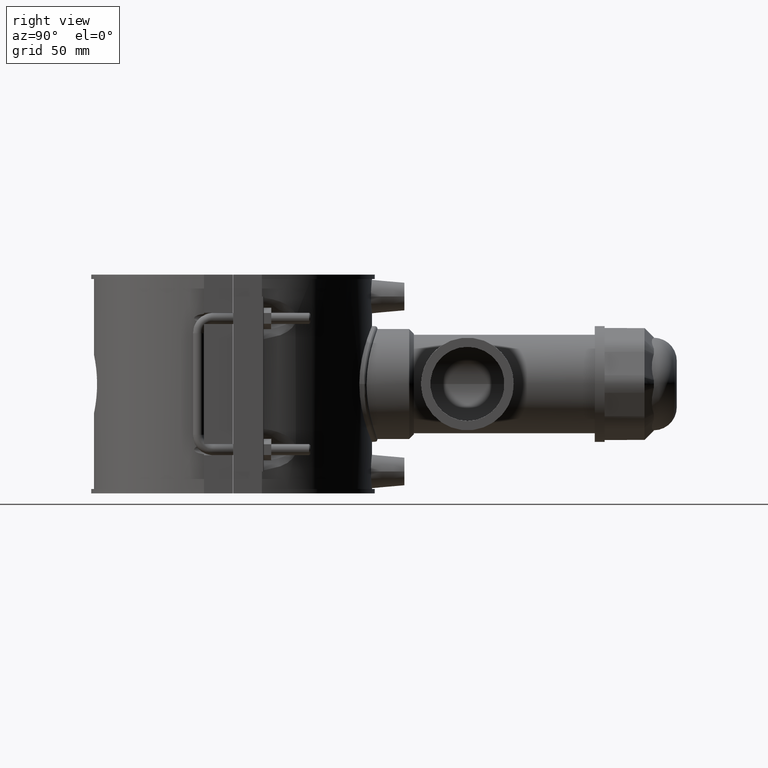
[diagram: clean part render]
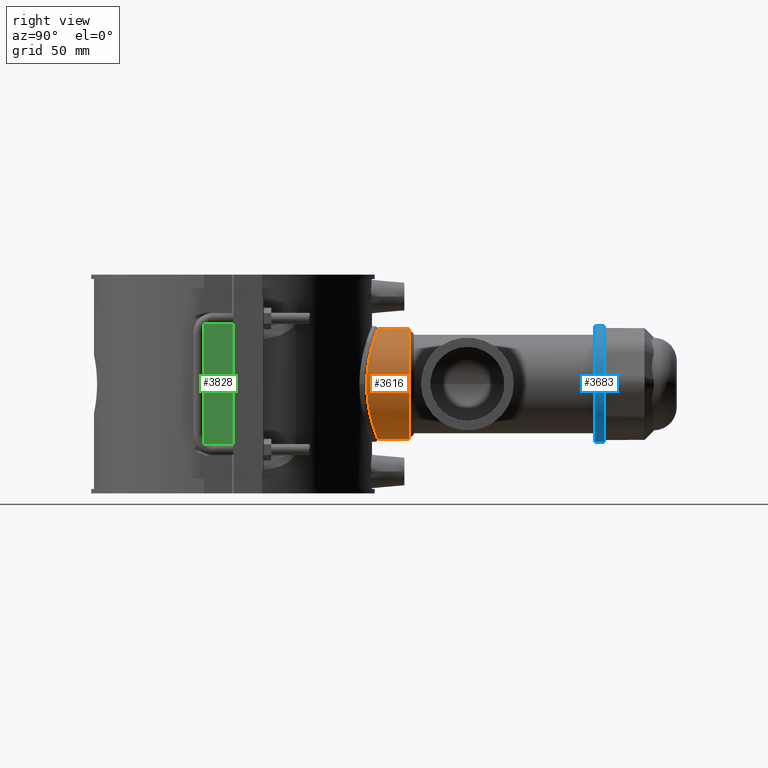
[diagram: same view with three faces highlighted in distinct colors, each labeled with its STEP entity id]
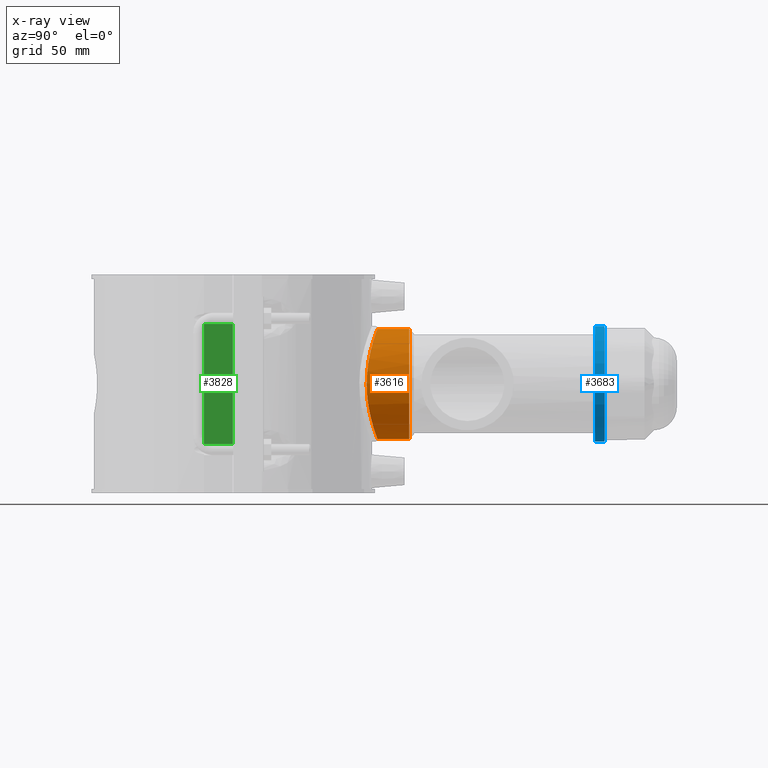
[diagram: x-ray of the same camera — body ghosted, the three highlighted faces saturated]
A machine part, right view with three faces highlighted in distinct colors.
The next image is the same camera in x-ray (body ghosted, the three faces saturated) — at least one of them is partly hidden behind the body in this view.
Their STEP definitions:

[orange] entity #3616 — the highlighted cylindrical surface (bore or boss wall) has radius 29.6875 mm, axis along (0, 1, 0).
#660=FACE_BOUND('',#1110,.T.);
#717=B_SPLINE_CURVE_WITH_KNOTS('',3,(#5286,#5287,#5288,#5289,#5290,#5291,
#5292,#5293,#5294,#5295,#5296,#5297,#5298,#5299,#5300,#5301,#5302,#5303,
#5304,#5305,#5306,#5307,#5308,#5309,#5310,#5311,#5312,#5313,#5314,#5315,
#5316,#5317,#5318,#5319,#5320,#5321,#5322,#5323,#5324,#5325,#5326,#5327,
#5328,#5329,#5330,#5331,#5332,#5333,#5334,#5335,#5336,#5337,#5338,#5339,
#5340,#5341,#5342,#5343,#5344,#5345,#5346,#5347,#5348,#5349,#5350,#5351),
 .UNSPECIFIED.,.T.,.F.,(4,2,2,2,2,2,2,2,2,2,2,2,2,2,2,2,2,2,2,2,2,2,2,2,
2,2,2,2,2,2,2,2,4),(0.,0.565609696294406,1.13121939258881,1.69682908888322,
2.26243878517762,2.82758682347981,3.392734861782,3.9578829000842,4.52303093838639,
5.08817897668858,5.65332701499077,6.21847505329296,6.78362309159515,7.34923278788955,
7.91484248418396,8.48045218047837,9.04606187677277,9.61167157306718,10.1772812693616,
10.742890965656,11.3085006619504,11.8736487002526,12.4387967385548,13.003944776857,
13.5690928151592,14.1342408534613,14.6993888917635,15.2645369300657,15.8296849683679,
16.3952946646623,16.9609043609567,17.5265140572511,18.0921237535455),
 .UNSPECIFIED.);
#823=CYLINDRICAL_SURFACE('',#3846,29.6875);
#880=FACE_OUTER_BOUND('',#1109,.T.);
#1109=EDGE_LOOP('',(#2406));
#1110=EDGE_LOOP('',(#2407));
#1390=CIRCLE('',#3847,29.6875);
#1519=VERTEX_POINT('',#5283);
#1520=VERTEX_POINT('',#5285);
#1872=EDGE_CURVE('',#1519,#1519,#1390,.T.);
#1873=EDGE_CURVE('',#1520,#1520,#717,.T.);
#2406=ORIENTED_EDGE('',*,*,#1872,.F.);
#2407=ORIENTED_EDGE('',*,*,#1873,.F.);
#3616=ADVANCED_FACE('',(#880,#660),#823,.T.);
#3846=AXIS2_PLACEMENT_3D('',#5282,#4184,#4185);
#3847=AXIS2_PLACEMENT_3D('',#5284,#4186,#4187);
#4184=DIRECTION('center_axis',(0.,1.,3.06161699786838E-16));
#4185=DIRECTION('ref_axis',(0.,0.,1.));
#4186=DIRECTION('center_axis',(0.,1.,3.06161699786838E-16));
#4187=DIRECTION('ref_axis',(0.,0.,-1.));
#5282=CARTESIAN_POINT('Origin',(0.,48.775,-4.20206932957436E-15));
#5283=CARTESIAN_POINT('',(3.6356701849687E-15,95.1,29.6875));
#5284=CARTESIAN_POINT('Origin',(0.,95.1,9.98087141305094E-15));
#5285=CARTESIAN_POINT('',(29.6875,72.1294138597424,8.88178419700125E-15));
#5286=CARTESIAN_POINT('Ctrl Pts',(29.6875,72.1294138597424,8.88178419700125E-15));
#5287=CARTESIAN_POINT('Ctrl Pts',(29.6875,72.1294138597424,1.8853656543147));
#5288=CARTESIAN_POINT('Ctrl Pts',(29.5050177229483,72.2054161366937,3.82815168322658));
#5289=CARTESIAN_POINT('Ctrl Pts',(28.7441213922923,72.5116795788207,7.67960297758151));
#5290=CARTESIAN_POINT('Ctrl Pts',(28.1659472965858,72.7415882388456,9.58834366800604));
#5291=CARTESIAN_POINT('Ctrl Pts',(26.645651076146,73.3121302479804,13.2388179783092));
#5292=CARTESIAN_POINT('Ctrl Pts',(25.7023236938706,73.6525710205307,14.9838208565641));
#5293=CARTESIAN_POINT('Ctrl Pts',(23.5296539645,74.3751708924151,18.2065843962451));
#5294=CARTESIAN_POINT('Ctrl Pts',(22.3000998176629,74.7566026182705,19.6843653152883));
#5295=CARTESIAN_POINT('Ctrl Pts',(19.685432813553,75.4872493388117,22.2990323193983));
#5296=CARTESIAN_POINT('Ctrl Pts',(18.2081624703079,75.862922160069,23.5284526168179));
#5297=CARTESIAN_POINT('Ctrl Pts',(14.9851285706639,76.564783424806,25.7015794253141));
#5298=CARTESIAN_POINT('Ctrl Pts',(13.239343187312,76.8903577451461,26.6454518627157));
#5299=CARTESIAN_POINT('Ctrl Pts',(9.58729246113339,77.4305569261101,28.1663655672249));
#5300=CARTESIAN_POINT('Ctrl Pts',(7.67778047728638,77.6452244034261,28.7446152802782));
#5301=CARTESIAN_POINT('Ctrl Pts',(3.82607619261154,77.9300348176932,29.5052937901955));
#5302=CARTESIAN_POINT('Ctrl Pts',(1.88382679434063,78.,29.6875));
#5303=CARTESIAN_POINT('Ctrl Pts',(-1.88382679434064,78.,29.6875));
#5304=CARTESIAN_POINT('Ctrl Pts',(-3.82607619261154,77.9300348176932,29.5052937901955));
#5305=CARTESIAN_POINT('Ctrl Pts',(-7.67778047728638,77.6452244034261,28.7446152802782));
#5306=CARTESIAN_POINT('Ctrl Pts',(-9.58729246113339,77.4305569261101,28.1663655672249));
#5307=CARTESIAN_POINT('Ctrl Pts',(-13.239343187312,76.8903577451461,26.6454518627157));
#5308=CARTESIAN_POINT('Ctrl Pts',(-14.9851285706639,76.564783424806,25.701579425314));
#5309=CARTESIAN_POINT('Ctrl Pts',(-18.2081624703079,75.862922160069,23.5284526168179));
#5310=CARTESIAN_POINT('Ctrl Pts',(-19.685432813553,75.4872493388117,22.2990323193983));
#5311=CARTESIAN_POINT('Ctrl Pts',(-22.3000998176629,74.7566026182705,19.6843653152883));
#5312=CARTESIAN_POINT('Ctrl Pts',(-23.5296539645,74.3751708924151,18.2065843962451));
#5313=CARTESIAN_POINT('Ctrl Pts',(-25.7023236938706,73.6525710205307,14.983820856564));
#5314=CARTESIAN_POINT('Ctrl Pts',(-26.645651076146,73.3121302479804,13.2388179783092));
#5315=CARTESIAN_POINT('Ctrl Pts',(-28.1659472965858,72.7415882388456,9.58834366800604));
#5316=CARTESIAN_POINT('Ctrl Pts',(-28.7441213922923,72.5116795788207,7.67960297758151));
#5317=CARTESIAN_POINT('Ctrl Pts',(-29.5050177229483,72.2054161366937,3.82815168322658));
#5318=CARTESIAN_POINT('Ctrl Pts',(-29.6875,72.1294138597424,1.88536565431469));
#5319=CARTESIAN_POINT('Ctrl Pts',(-29.6875,72.1294138597424,-1.88536565431468));
#5320=CARTESIAN_POINT('Ctrl Pts',(-29.5050177229483,72.2054161366937,-3.82815168322656));
#5321=CARTESIAN_POINT('Ctrl Pts',(-28.7441213922923,72.5116795788207,-7.67960297758148));
#5322=CARTESIAN_POINT('Ctrl Pts',(-28.1659472965858,72.7415882388456,-9.58834366800602));
#5323=CARTESIAN_POINT('Ctrl Pts',(-26.645651076146,73.3121302479804,-13.2388179783092));
#5324=CARTESIAN_POINT('Ctrl Pts',(-25.7023236938706,73.6525710205307,-14.983820856564));
#5325=CARTESIAN_POINT('Ctrl Pts',(-23.5296539645,74.3751708924151,-18.2065843962451));
#5326=CARTESIAN_POINT('Ctrl Pts',(-22.3000998176629,74.7566026182705,-19.6843653152883));
#5327=CARTESIAN_POINT('Ctrl Pts',(-19.685432813553,75.4872493388117,-22.2990323193983));
#5328=CARTESIAN_POINT('Ctrl Pts',(-18.2081624703079,75.862922160069,-23.5284526168179));
#5329=CARTESIAN_POINT('Ctrl Pts',(-14.9851285706639,76.564783424806,-25.701579425314));
#5330=CARTESIAN_POINT('Ctrl Pts',(-13.239343187312,76.8903577451461,-26.6454518627157));
#5331=CARTESIAN_POINT('Ctrl Pts',(-9.5872924611334,77.4305569261101,-28.1663655672249));
#5332=CARTESIAN_POINT('Ctrl Pts',(-7.67778047728639,77.6452244034261,-28.7446152802781));
#5333=CARTESIAN_POINT('Ctrl Pts',(-3.82607619261155,77.9300348176932,-29.5052937901955));
#5334=CARTESIAN_POINT('Ctrl Pts',(-1.88382679434064,78.,-29.6875));
#5335=CARTESIAN_POINT('Ctrl Pts',(1.88382679434063,78.,-29.6875));
#5336=CARTESIAN_POINT('Ctrl Pts',(3.82607619261154,77.9300348176932,-29.5052937901955));
#5337=CARTESIAN_POINT('Ctrl Pts',(7.67778047728638,77.6452244034261,-28.7446152802782));
#5338=CARTESIAN_POINT('Ctrl Pts',(9.58729246113339,77.4305569261101,-28.1663655672249));
#5339=CARTESIAN_POINT('Ctrl Pts',(13.239343187312,76.8903577451461,-26.6454518627157));
#5340=CARTESIAN_POINT('Ctrl Pts',(14.9851285706639,76.564783424806,-25.701579425314));
#5341=CARTESIAN_POINT('Ctrl Pts',(18.2081624703079,75.862922160069,-23.5284526168179));
#5342=CARTESIAN_POINT('Ctrl Pts',(19.685432813553,75.4872493388117,-22.2990323193983));
#5343=CARTESIAN_POINT('Ctrl Pts',(22.3000998176629,74.7566026182705,-19.6843653152883));
#5344=CARTESIAN_POINT('Ctrl Pts',(23.5296539645,74.3751708924151,-18.2065843962451));
#5345=CARTESIAN_POINT('Ctrl Pts',(25.7023236938706,73.6525710205307,-14.983820856564));
#5346=CARTESIAN_POINT('Ctrl Pts',(26.645651076146,73.3121302479804,-13.2388179783092));
#5347=CARTESIAN_POINT('Ctrl Pts',(28.1659472965858,72.7415882388456,-9.58834366800602));
#5348=CARTESIAN_POINT('Ctrl Pts',(28.7441213922923,72.5116795788207,-7.67960297758148));
#5349=CARTESIAN_POINT('Ctrl Pts',(29.5050177229483,72.2054161366937,-3.82815168322656));
#5350=CARTESIAN_POINT('Ctrl Pts',(29.6875,72.1294138597424,-1.88536565431467));
#5351=CARTESIAN_POINT('Ctrl Pts',(29.6875,72.1294138597424,9.43689570931383E-15));

[blue] entity #3683 — the highlighted cylindrical surface (bore or boss wall) has radius 31.25 mm, axis along (0, 1, 0).
#671=FACE_BOUND('',#1188,.T.);
#835=CYLINDRICAL_SURFACE('',#3938,31.25);
#947=FACE_OUTER_BOUND('',#1187,.T.);
#1187=EDGE_LOOP('',(#2698));
#1188=EDGE_LOOP('',(#2699));
#1428=CIRCLE('',#3933,31.25);
#1430=CIRCLE('',#3937,31.25);
#1607=VERTEX_POINT('',#6133);
#1609=VERTEX_POINT('',#6139);
#2016=EDGE_CURVE('',#1607,#1607,#1428,.T.);
#2018=EDGE_CURVE('',#1609,#1609,#1430,.T.);
#2698=ORIENTED_EDGE('',*,*,#2018,.T.);
#2699=ORIENTED_EDGE('',*,*,#2016,.F.);
#3683=ADVANCED_FACE('',(#947,#671),#835,.T.);
#3933=AXIS2_PLACEMENT_3D('',#6134,#4422,#4423);
#3937=AXIS2_PLACEMENT_3D('',#6140,#4430,#4431);
#3938=AXIS2_PLACEMENT_3D('',#6141,#4432,#4433);
#4422=DIRECTION('center_axis',(0.,1.,3.06161699786838E-16));
#4423=DIRECTION('ref_axis',(1.,0.,0.));
#4430=DIRECTION('center_axis',(0.,1.,3.06161699786838E-16));
#4431=DIRECTION('ref_axis',(1.,0.,0.));
#4432=DIRECTION('center_axis',(0.,1.,3.06161699786838E-16));
#4433=DIRECTION('ref_axis',(0.,0.,1.));
#6133=CARTESIAN_POINT('',(0.,200.56,31.25));
#6134=CARTESIAN_POINT('Origin',(0.,200.56,4.22686842725709E-14));
#6139=CARTESIAN_POINT('',(0.,195.25,31.25));
#6140=CARTESIAN_POINT('Origin',(0.,195.25,4.06429656467028E-14));
#6141=CARTESIAN_POINT('Origin',(0.,197.905,4.14558249596369E-14));

[green] entity #3828 — the highlighted planar face has unit normal (1, 0, 0).
#312=LINE('',#8042,#611);
#317=LINE('',#8055,#616);
#328=LINE('',#8078,#627);
#335=LINE('',#8092,#634);
#611=VECTOR('',#5045,64.8);
#616=VECTOR('',#5062,15.575);
#627=VECTOR('',#5087,15.575);
#634=VECTOR('',#5102,64.8);
#1092=FACE_OUTER_BOUND('',#1372,.T.);
#1372=EDGE_LOOP('',(#3400,#3401,#3402,#3403));
#1852=VERTEX_POINT('',#8039);
#1853=VERTEX_POINT('',#8041);
#1855=VERTEX_POINT('',#8054);
#1860=VERTEX_POINT('',#8076);
#2363=EDGE_CURVE('',#1852,#1853,#312,.T.);
#2369=EDGE_CURVE('',#1855,#1853,#317,.T.);
#2382=EDGE_CURVE('',#1852,#1860,#328,.T.);
#2389=EDGE_CURVE('',#1860,#1855,#335,.T.);
#3400=ORIENTED_EDGE('',*,*,#2369,.T.);
#3401=ORIENTED_EDGE('',*,*,#2363,.F.);
#3402=ORIENTED_EDGE('',*,*,#2382,.T.);
#3403=ORIENTED_EDGE('',*,*,#2389,.T.);
#3604=PLANE('',#4159);
#3828=ADVANCED_FACE('',(#1092),#3604,.T.);
#4159=AXIS2_PLACEMENT_3D('',#8091,#5100,#5101);
#5045=DIRECTION('',(0.,0.,1.));
#5062=DIRECTION('',(0.,-1.,0.));
#5087=DIRECTION('',(0.,1.,0.));
#5100=DIRECTION('center_axis',(1.,0.,0.));
#5101=DIRECTION('ref_axis',(0.,1.,0.));
#5102=DIRECTION('',(0.,0.,1.));
#8039=CARTESIAN_POINT('',(81.,-15.625,-32.4));
#8041=CARTESIAN_POINT('',(81.,-15.625,32.4));
#8042=CARTESIAN_POINT('',(81.,-15.625,0.));
#8054=CARTESIAN_POINT('',(81.,-0.0500000000000078,32.4));
#8055=CARTESIAN_POINT('',(81.,-15.625,32.4));
#8076=CARTESIAN_POINT('',(81.,-0.0500000000000078,-32.4));
#8078=CARTESIAN_POINT('',(81.,-15.625,-32.4));
#8091=CARTESIAN_POINT('Origin',(81.,-15.625,0.));
#8092=CARTESIAN_POINT('',(81.,-0.0500000000000078,-29.5));